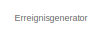
[diagram: root canvas - part 1/3, top left region]
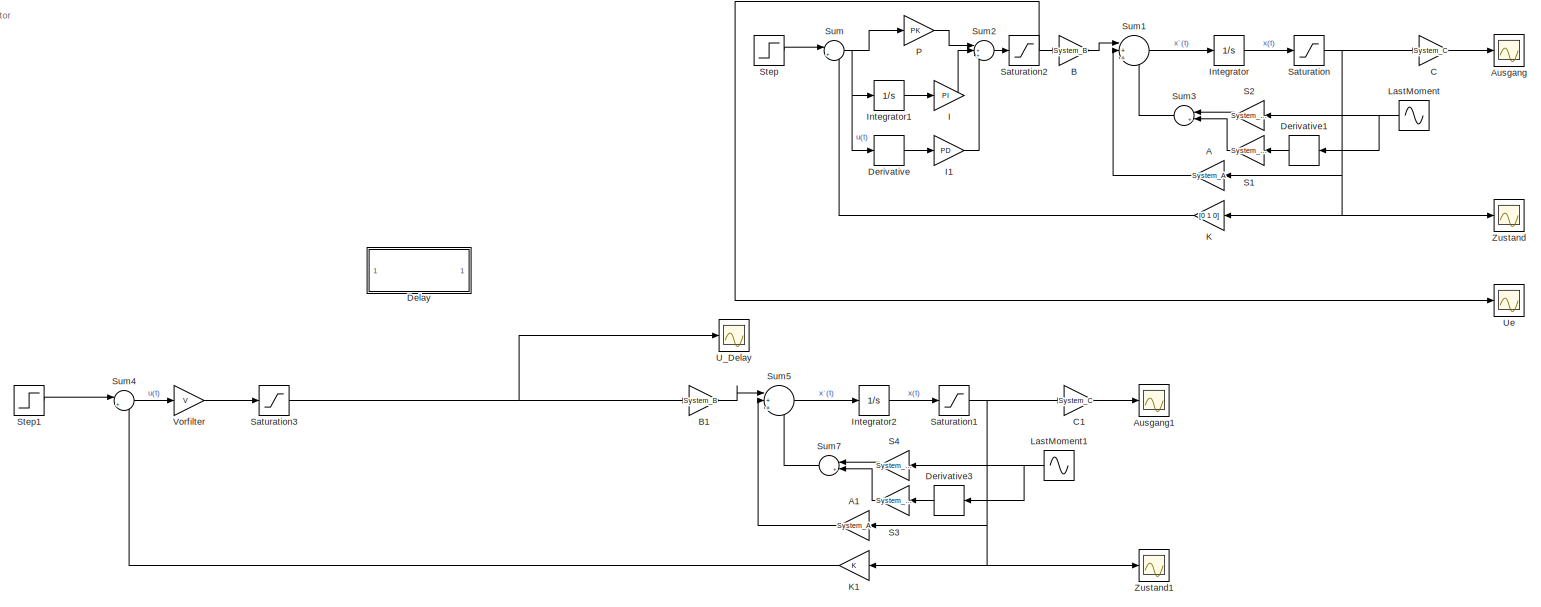
[diagram: root canvas - part 2/3, most of the canvas]
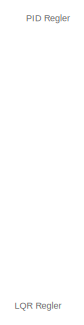
[diagram: root canvas - part 3/3, middle right region]
MODEL slx_e367d5d10e66
KIND model
BLOCK [Gain] A
  Gain = System_A
  Multiplication = Matrix(K*u)
  OutDataTypeStr = Inherit: Inherit via internal rule
  ParamDataTypeStr = Inherit: Inherit via internal rule
  SaturateOnIntegerOverflow = off
BLOCK [Gain] A1
  Gain = System_A
  Multiplication = Matrix(K*u)
  OutDataTypeStr = Inherit: Inherit via internal rule
  ParamDataTypeStr = Inherit: Inherit via internal rule
  SaturateOnIntegerOverflow = off
BLOCK [Scope] Ausgang
  DataFormat = StructureWithTime
  Floating = off
  NumInputPorts = 1
  Ports = [1]
  SampleTime = 0
  ShowLegends = off
  TimeRange = 50
  YMax = 5.5e-11
  YMin = -2.42338e-27
BLOCK [Scope] Ausgang1
  DataFormat = StructureWithTime
  Floating = off
  NumInputPorts = 1
  Ports = [1]
  SampleTime = 0
  SaveName = ScopeData3
  ShowLegends = off
  TimeRange = 50
  YMax = 200
  YMin = -50
BLOCK [Gain] B
  Gain = System_B
  Multiplication = Matrix(K*u)
  OutDataTypeStr = Inherit: Inherit via internal rule
  ParamDataTypeStr = Inherit: Inherit via internal rule
  SaturateOnIntegerOverflow = off
BLOCK [Gain] B1
  Gain = System_B
  Multiplication = Matrix(K*u)
  OutDataTypeStr = Inherit: Inherit via internal rule
  ParamDataTypeStr = Inherit: Inherit via internal rule
  SaturateOnIntegerOverflow = off
BLOCK [Gain] C
  Gain = System_C
  Multiplication = Matrix(K*u)
  OutDataTypeStr = Inherit: Inherit via internal rule
  ParamDataTypeStr = Inherit: Inherit via internal rule
  SaturateOnIntegerOverflow = off
BLOCK [Gain] C1
  Gain = System_C
  Multiplication = Matrix(K*u)
  OutDataTypeStr = Inherit: Inherit via internal rule
  ParamDataTypeStr = Inherit: Inherit via internal rule
  SaturateOnIntegerOverflow = off
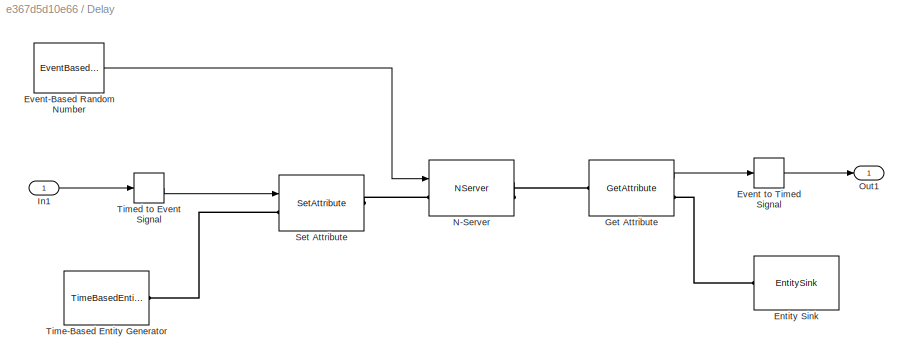
BLOCK [SubSystem] Delay
  Ports = [1, 1]
  RequestExecContextInheritance = off
BLOCK [EntitySink] Delay/Entity Sink
  Ports = [0, 0, 0, 0, 0, 1]
BLOCK [EventToTimedSignal] Delay/Event to Timed Signal
  InputPortMap = u0
  OutputPortMap = o0
  Ports = [1, 1]
BLOCK [EventBasedRandomNumber] Delay/Event-Based Random Number
  Distribution = Uniform
  OutputPortMap = o0
  Ports = [0, 1]
  maxUnif = 0.2
  minUnif = 0.1
BLOCK [GetAttribute] Delay/Get Attribute
  AttributeName = Value
  EvaluatedDefaultAttributeValue = { []}
  OutputPortMap = o1
  Ports = [0, 1, 0, 0, 0, 1, 1]
BLOCK [Inport] Delay/In1
  IconDisplay = Port number
BLOCK [NServer] Delay/N-Server
  InputPortMap = u0
  NumberOfServers = 1
  OutputPortMap = o0
  Ports = [1, 1, 0, 0, 0, 1, 1]
  ServiceTimeFrom = Signal port t
  StatNumberDeparted = on
BLOCK [Outport] Delay/Out1
  IconDisplay = Port number
BLOCK [SetAttribute] Delay/Set Attribute
  AttributeFrom = Signal port
  AttributeName = Value
  EvaluatedAttributeValue = { []}
  InputPortMap = u0
  Ports = [1, 0, 0, 0, 0, 1, 1]
BLOCK [TimeBasedEntityGenerator] Delay/Time-Based Entity Generator
  Period = 0.01
  Ports = [0, 0, 0, 0, 0, 0, 1]
BLOCK [TimedToEventSignal] Delay/Timed to Event Signal
  InputPortMap = u0
  OutputPortMap = o0
  Ports = [1, 1]
BLOCK [Derivative] Derivative
BLOCK [Derivative] Derivative1
BLOCK [Derivative] Derivative3
BLOCK [Gain] I
  Gain = PI
  Multiplication = Matrix(K*u)
  OutDataTypeStr = Inherit: Inherit via internal rule
  ParamDataTypeStr = Inherit: Inherit via internal rule
  SaturateOnIntegerOverflow = off
BLOCK [Gain] I1
  Gain = PD
  Multiplication = Matrix(K*u)
  OutDataTypeStr = Inherit: Inherit via internal rule
  ParamDataTypeStr = Inherit: Inherit via internal rule
  SaturateOnIntegerOverflow = off
BLOCK [Integrator] Integrator
  Ports = [1, 1]
BLOCK [Integrator] Integrator1
  Ports = [1, 1]
BLOCK [Integrator] Integrator2
  Ports = [1, 1]
BLOCK [Gain] K
  Gain = [0 1 0]
  Multiplication = Matrix(K*u)
  OutDataTypeStr = Inherit: Inherit via internal rule
  ParamDataTypeStr = Inherit: Inherit via internal rule
  SaturateOnIntegerOverflow = off
BLOCK [Gain] K1
  Gain = K
  Multiplication = Matrix(K*u)
  OutDataTypeStr = Inherit: Inherit via internal rule
  ParamDataTypeStr = Inherit: Inherit via internal rule
  SaturateOnIntegerOverflow = off
BLOCK [Sin] LastMoment
  Amplitude = 2
  Ports = [0, 1]
  SampleTime = 0
BLOCK [Sin] LastMoment1
  Amplitude = 2
  Ports = [0, 1]
  SampleTime = 0
BLOCK [Gain] P
  Gain = PK
  Multiplication = Matrix(K*u)
  OutDataTypeStr = Inherit: Inherit via internal rule
  ParamDataTypeStr = Inherit: Inherit via internal rule
  SaturateOnIntegerOverflow = off
BLOCK [Gain] S1
  Gain = System_S1
  Multiplication = Matrix(K*u)
  OutDataTypeStr = Inherit: Inherit via internal rule
  ParamDataTypeStr = Inherit: Inherit via internal rule
  SaturateOnIntegerOverflow = off
BLOCK [Gain] S2
  Gain = System_S2
  Multiplication = Matrix(K*u)
  OutDataTypeStr = Inherit: Inherit via internal rule
  ParamDataTypeStr = Inherit: Inherit via internal rule
  SaturateOnIntegerOverflow = off
BLOCK [Gain] S3
  Gain = System_S1
  Multiplication = Matrix(K*u)
  OutDataTypeStr = Inherit: Inherit via internal rule
  ParamDataTypeStr = Inherit: Inherit via internal rule
  SaturateOnIntegerOverflow = off
BLOCK [Gain] S4
  Gain = System_S2
  Multiplication = Matrix(K*u)
  OutDataTypeStr = Inherit: Inherit via internal rule
  ParamDataTypeStr = Inherit: Inherit via internal rule
  SaturateOnIntegerOverflow = off
BLOCK [Saturate] Saturation
  InputPortMap = u0
  LowerLimit = [-500000000 -300 -500]
  Ports = [1, 1]
  UpperLimit = [500000000 300 500]
BLOCK [Saturate] Saturation1
  InputPortMap = u0
  LowerLimit = [-500000000 -300 -500]
  Ports = [1, 1]
  UpperLimit = [500000000 300 500]
BLOCK [Saturate] Saturation2
  InputPortMap = u0
  LowerLimit = -1000
  Ports = [1, 1]
  UpperLimit = 1000
BLOCK [Saturate] Saturation3
  InputPortMap = u0
  LowerLimit = -1000
  Ports = [1, 1]
  UpperLimit = 1000
BLOCK [Step] Step
  After = 200
  SampleTime = 0
  Time = 0
BLOCK [Step] Step1
  After = Idea
  SampleTime = 0
  Time = 0
BLOCK [Sum] Sum
  IconShape = round
  InputSameDT = off
  Inputs = |+-
  OutDataTypeStr = Inherit: Inherit via internal rule
  Ports = [2, 1]
  SaturateOnIntegerOverflow = off
BLOCK [Sum] Sum1
  IconShape = round
  InputSameDT = off
  Inputs = |++-
  OutDataTypeStr = Inherit: Inherit via internal rule
  Ports = [3, 1]
  SaturateOnIntegerOverflow = off
BLOCK [Sum] Sum2
  IconShape = round
  InputSameDT = off
  Inputs = |+++
  OutDataTypeStr = Inherit: Inherit via internal rule
  Ports = [3, 1]
  SaturateOnIntegerOverflow = off
BLOCK [Sum] Sum3
  IconShape = round
  InputSameDT = off
  Inputs = |++
  OutDataTypeStr = Inherit: Inherit via internal rule
  Ports = [2, 1]
  SaturateOnIntegerOverflow = off
BLOCK [Sum] Sum4
  IconShape = round
  InputSameDT = off
  Inputs = |+-
  OutDataTypeStr = Inherit: Inherit via internal rule
  Ports = [2, 1]
  SaturateOnIntegerOverflow = off
BLOCK [Sum] Sum5
  IconShape = round
  InputSameDT = off
  Inputs = |++-
  OutDataTypeStr = Inherit: Inherit via internal rule
  Ports = [3, 1]
  SaturateOnIntegerOverflow = off
BLOCK [Sum] Sum7
  IconShape = round
  InputSameDT = off
  Inputs = |++
  OutDataTypeStr = Inherit: Inherit via internal rule
  Ports = [2, 1]
  SaturateOnIntegerOverflow = off
BLOCK [Scope] U_Delay
  DataFormat = StructureWithTime
  Floating = off
  NumInputPorts = 1
  Ports = [1]
  SampleTime = 0
  SaveName = ScopeData6
  ShowLegends = off
BLOCK [Scope] Ue
  DataFormat = StructureWithTime
  Floating = off
  NumInputPorts = 1
  Ports = [1]
  SampleTime = 0
  SaveName = ScopeData2
  ShowLegends = off
  TimeRange = 50
  YMax = 200
  YMin = -50
BLOCK [Gain] Vorfilter
  Gain = V
  Multiplication = Matrix(K*u)
  OutDataTypeStr = Inherit: Inherit via internal rule
  ParamDataTypeStr = Inherit: Inherit via internal rule
  SaturateOnIntegerOverflow = off
BLOCK [Scope] Zustand
  DataFormat = StructureWithTime
  Floating = off
  NumInputPorts = 1
  Ports = [1]
  SampleTime = 0
  SaveName = ScopeData1
  ShowLegends = off
  YMax = 0.0024
  YMin = -8.13152e-20
BLOCK [Scope] Zustand1
  DataFormat = StructureWithTime
  Floating = off
  LegendLocations = 0.88901     0.87558     0.08884    0.072362
  NumInputPorts = 1
  Ports = [1]
  SampleTime = 0
  SaveName = ScopeData5
  ShowLegends = on
ANNOTATION (root): Erreignisgenerator
ANNOTATION (root): LQR Regler
ANNOTATION (root): PID Regler
LINE A1:1 -> Sum5:2
LINE A:1 -> Sum1:2
LINE B1:1 -> Sum5:1
LINE B:1 -> Sum1:1
LINE C1:1 -> Ausgang1:1
LINE C:1 -> Ausgang:1
LINE Delay/Event to Timed Signal:1 -> Delay/Out1:1
LINE Delay/Event-Based Random Number:1 -> Delay/N-Server:1
LINE Delay/Get Attribute:1 -> Delay/Event to Timed Signal:1
LINE Delay/In1:1 -> Delay/Timed to Event Signal:1
LINE Delay/Timed to Event Signal:1 -> Delay/Set Attribute:1
LINE Derivative1:1 -> S1:1
LINE Derivative3:1 -> S3:1
LINE Derivative:1 -> I1:1
LINE I1:1 -> Sum2:3
LINE I:1 -> Sum2:2
LINE Integrator1:1 -> I:1
LINE Integrator2:1 -> Saturation1:1
LINE Integrator:1 -> Saturation:1
LINE K1:1 -> Sum4:2
LINE K:1 -> Sum:2
NET LastMoment1:1 -> Derivative3:1, S4:1
NET LastMoment:1 -> Derivative1:1, S2:1
LINE P:1 -> Sum2:1
LINE S1:1 -> Sum3:2
LINE S2:1 -> Sum3:1
LINE S3:1 -> Sum7:2
LINE S4:1 -> Sum7:1
NET Saturation1:1 -> A1:1, C1:1, K1:1, Zustand1:1
NET Saturation2:1 -> B:1, Ue:1
NET Saturation3:1 -> B1:1, U_Delay:1
NET Saturation:1 -> A:1, C:1, K:1, Zustand:1
LINE Step1:1 -> Sum4:1
LINE Step:1 -> Sum:1
LINE Sum1:1 -> Integrator:1
LINE Sum2:1 -> Saturation2:1
LINE Sum3:1 -> Sum1:3
LINE Sum4:1 -> Vorfilter:1
LINE Sum5:1 -> Integrator2:1
LINE Sum7:1 -> Sum5:3
NET Sum:1 -> Derivative:1, Integrator1:1, P:1
LINE Vorfilter:1 -> Saturation3:1
PLINE Delay/Entity Sink:LConn1 -- Delay/Get Attribute:RConn1
PLINE Delay/Get Attribute:LConn1 -- Delay/N-Server:RConn1
PLINE Delay/N-Server:LConn1 -- Delay/Set Attribute:RConn1
PLINE Delay/Set Attribute:LConn1 -- Delay/Time-Based Entity Generator:RConn1
note: NET lines group one-source signal fan-out (src -> all destinations, sorted); 1:1 wires keep LINE
